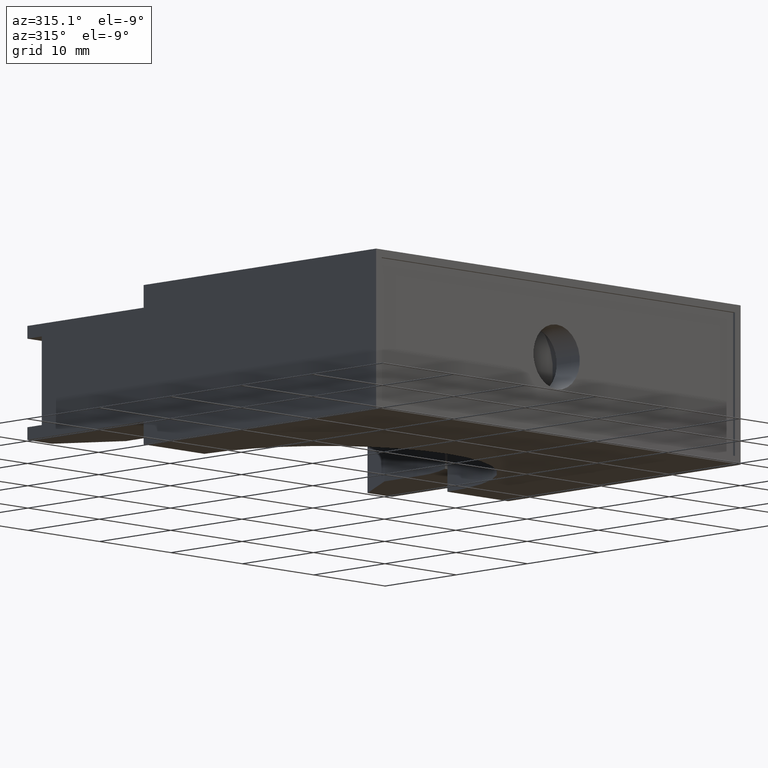
[diagram: clean part render]
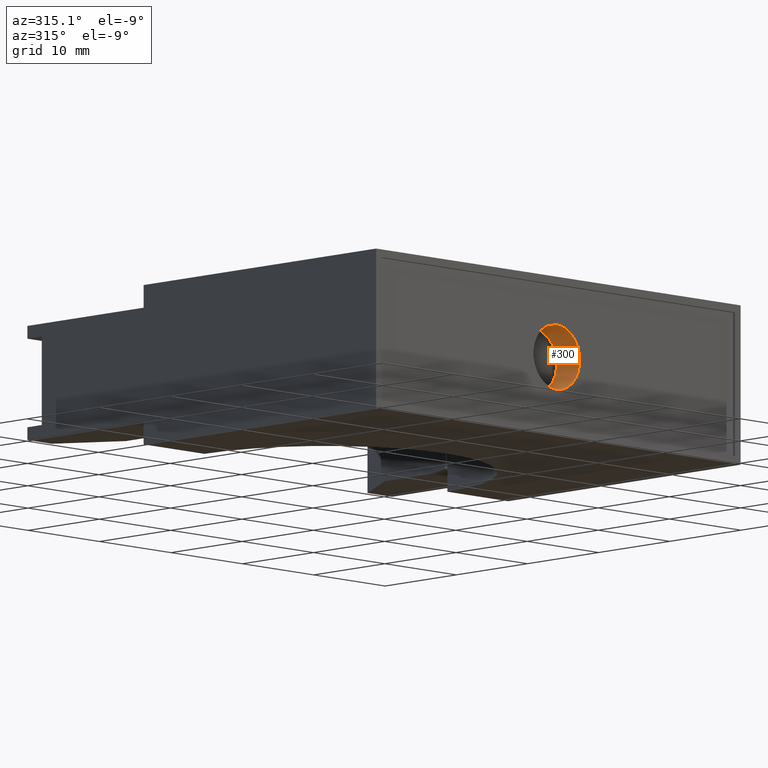
[diagram: same view with one face highlighted and labeled with its STEP entity id]
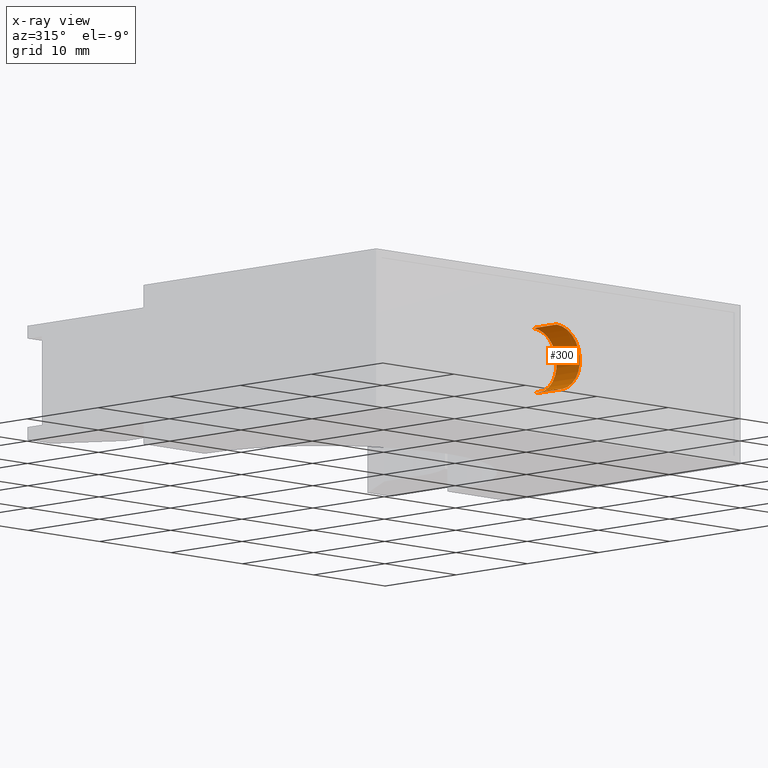
[diagram: x-ray of the same camera — body ghosted, the highlighted face saturated]
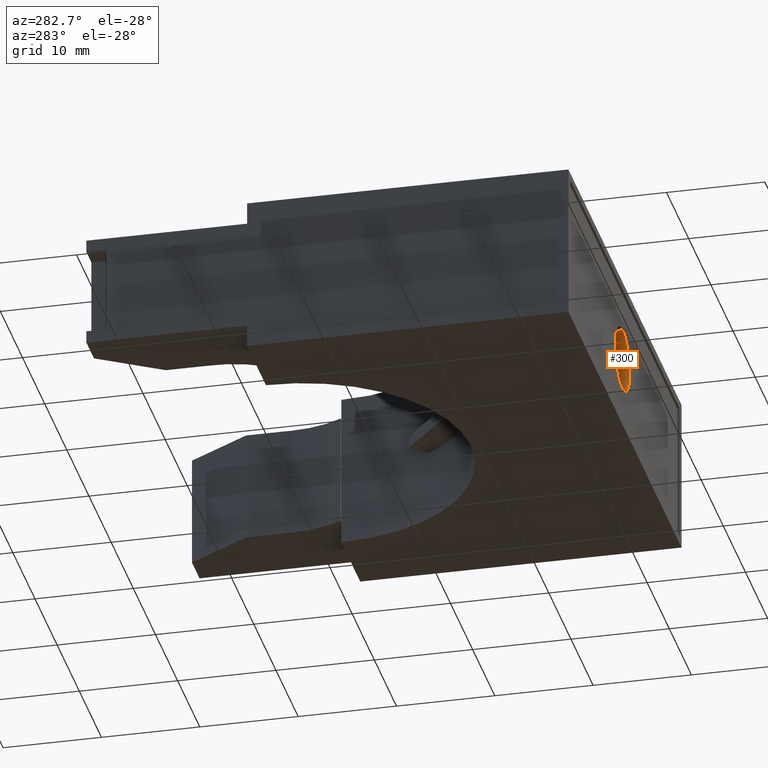
[diagram: same view with one face highlighted and labeled with its STEP entity id]
A machine part, auxiliary view. The second image highlights one B-rep face of the part: STEP entity #300.
The next image is the same camera in x-ray: the body ghosted, the highlighted face saturated — about 0% of this face is hidden behind the body in this view.
A second angle (auxiliary view) of the same face is appended — the face is thin or edge-on in the first view.
In plain terms, the highlighted cylindrical surface (edge-blend (fillet) strip) has radius 3.252 mm, axis along (-0, 1, 0).
Its self-contained STEP definition (entity closure, byte-faithful):
#8 = VERTEX_POINT ( 'NONE', #512 ) ;
#10 = EDGE_CURVE ( 'NONE', #174, #8, #688, .T. ) ;
#173 = VERTEX_POINT ( 'NONE', #1057 ) ;
#174 = VERTEX_POINT ( 'NONE', #1056 ) ;
#176 = EDGE_CURVE ( 'NONE', #173, #177, #973, .T. ) ;
#177 = VERTEX_POINT ( 'NONE', #969 ) ;
#193 = EDGE_CURVE ( 'NONE', #174, #173, #1118, .T. ) ;
#300 = ADVANCED_FACE ( 'NONE', ( #955 ), #954, .F. ) ;
#301 = EDGE_LOOP ( 'NONE', ( #302, #647, #646, #447 ) ) ;
#302 = ORIENTED_EDGE ( 'NONE', *, *, #176, .F. ) ;
#447 = ORIENTED_EDGE ( 'NONE', *, *, #448, .T. ) ;
#448 = EDGE_CURVE ( 'NONE', #8, #177, #1393, .T. ) ;
#512 = CARTESIAN_POINT ( 'NONE',  ( 0.0000000000000000000, -0.8269685039370076000, 0.4430314960629920800 ) ) ;
#646 = ORIENTED_EDGE ( 'NONE', *, *, #10, .T. ) ;
#647 = ORIENTED_EDGE ( 'NONE', *, *, #193, .F. ) ;
#685 = DIRECTION ( 'NONE',  ( -0.0000000000000000000, 1.000000000000000000, 1.018617520532313100E-016 ) ) ;
#686 = VECTOR ( 'NONE', #685, 39.37007874015748100 ) ;
#687 = CARTESIAN_POINT ( 'NONE',  ( 0.0000000000000000000, -1.304151250697277300E-017, 0.4430314960629921900 ) ) ;
#688 = LINE ( 'NONE', #687, #686 ) ;
#950 = DIRECTION ( 'NONE',  ( 0.0000000000000000000, -1.018617520532313200E-016, 1.000000000000000000 ) ) ;
#951 = DIRECTION ( 'NONE',  ( -0.0000000000000000000, 1.000000000000000000, 1.018617520532313100E-016 ) ) ;
#952 = CARTESIAN_POINT ( 'NONE',  ( 0.0000000000000000000, 0.0000000000000000000, 0.3150000000000000000 ) ) ;
#953 = AXIS2_PLACEMENT_3D ( 'NONE', #952, #951, #950 ) ;
#954 = CYLINDRICAL_SURFACE ( 'NONE', #953, 0.1280314960629921900 ) ;
#955 = FACE_OUTER_BOUND ( 'NONE', #301, .T. ) ;
#969 = CARTESIAN_POINT ( 'NONE',  ( 1.567933618435904000E-017, -0.8269685039370076000, 0.1869685039370077000 ) ) ;
#970 = DIRECTION ( 'NONE',  ( -0.0000000000000000000, 1.000000000000000000, 1.018617520532313100E-016 ) ) ;
#971 = VECTOR ( 'NONE', #970, 39.37007874015748100 ) ;
#972 = CARTESIAN_POINT ( 'NONE',  ( 1.567933618435903400E-017, 1.304151250697277300E-017, 0.1869685039370078100 ) ) ;
#973 = LINE ( 'NONE', #972, #971 ) ;
#1056 = CARTESIAN_POINT ( 'NONE',  ( 0.0000000000000000000, -0.9549999999999996300, 0.4430314960629920800 ) ) ;
#1057 = CARTESIAN_POINT ( 'NONE',  ( 1.567933618435903400E-017, -0.9549999999999996300, 0.1869685039370077300 ) ) ;
#1114 = DIRECTION ( 'NONE',  ( 0.0000000000000000000, 0.0000000000000000000, 1.000000000000000000 ) ) ;
#1115 = DIRECTION ( 'NONE',  ( -0.0000000000000000000, 1.000000000000000000, 1.018617520532313100E-016 ) ) ;
#1116 = CARTESIAN_POINT ( 'NONE',  ( 0.0000000000000000000, -0.9549999999999996300, 0.3149999999999998900 ) ) ;
#1117 = AXIS2_PLACEMENT_3D ( 'NONE', #1116, #1115, #1114 ) ;
#1118 = CIRCLE ( 'NONE', #1117, 0.1280314960629921900 ) ;
#1348 = DIRECTION ( 'NONE',  ( -0.0000000000000000000, 1.000000000000000000, 1.018617520532313100E-016 ) ) ;
#1349 = CARTESIAN_POINT ( 'NONE',  ( 0.0000000000000000000, -0.8269685039370076000, 0.3149999999999998900 ) ) ;
#1350 = AXIS2_PLACEMENT_3D ( 'NONE', #1349, #1348, #1374 ) ;
#1374 = DIRECTION ( 'NONE',  ( 0.0000000000000000000, 0.0000000000000000000, 1.000000000000000000 ) ) ;
#1393 = CIRCLE ( 'NONE', #1350, 0.1280314960629921900 ) ;